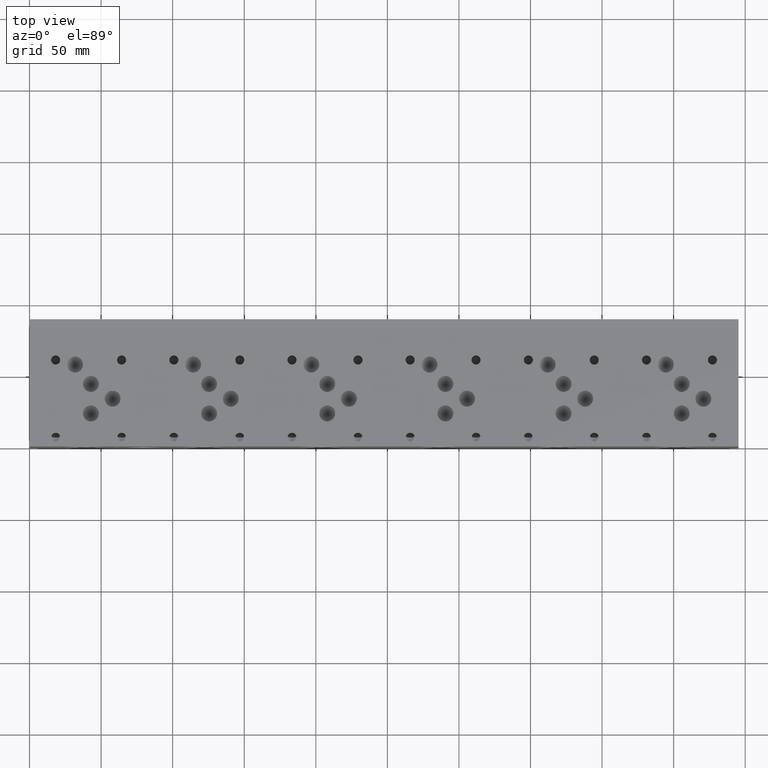
[diagram: clean part render]
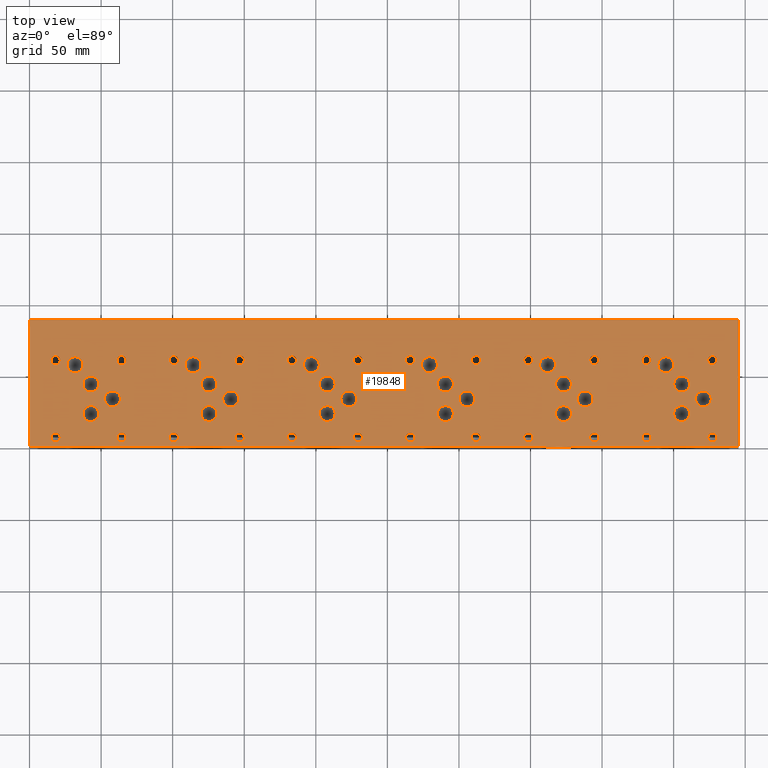
[diagram: same view with one face highlighted and labeled with its STEP entity id]
A machine part, top view. The second image highlights one B-rep face of the part: STEP entity #19848.
In plain terms, the highlighted planar face has unit normal (0, 0, 1).
Its self-contained STEP definition (entity closure, byte-faithful):
#696=CIRCLE('',#20896,3.175);
#697=CIRCLE('',#20897,3.175);
#703=CIRCLE('',#20907,3.175);
#704=CIRCLE('',#20908,3.175);
#710=CIRCLE('',#20918,3.175);
#711=CIRCLE('',#20919,3.175);
#717=CIRCLE('',#20929,3.175);
#718=CIRCLE('',#20930,3.175);
#724=CIRCLE('',#20940,3.175);
#725=CIRCLE('',#20941,3.175);
#731=CIRCLE('',#20951,3.175);
#732=CIRCLE('',#20952,3.175);
#738=CIRCLE('',#20962,3.175);
#739=CIRCLE('',#20963,3.175);
#745=CIRCLE('',#20973,3.175);
#746=CIRCLE('',#20974,3.175);
#752=CIRCLE('',#20984,3.175);
#753=CIRCLE('',#20985,3.175);
#759=CIRCLE('',#20995,3.175);
#760=CIRCLE('',#20996,3.175);
#766=CIRCLE('',#21006,3.175);
#767=CIRCLE('',#21007,3.175);
#773=CIRCLE('',#21017,3.175);
#774=CIRCLE('',#21018,3.175);
#780=CIRCLE('',#21028,3.175);
#781=CIRCLE('',#21029,3.175);
#787=CIRCLE('',#21039,3.175);
#788=CIRCLE('',#21040,3.175);
#794=CIRCLE('',#21050,3.175);
#795=CIRCLE('',#21051,3.175);
#801=CIRCLE('',#21061,3.175);
#802=CIRCLE('',#21062,3.175);
#808=CIRCLE('',#21072,3.175);
#809=CIRCLE('',#21073,3.175);
#815=CIRCLE('',#21083,3.175);
#816=CIRCLE('',#21084,3.175);
#822=CIRCLE('',#21094,3.175);
#823=CIRCLE('',#21095,3.175);
#829=CIRCLE('',#21105,3.175);
#830=CIRCLE('',#21106,3.175);
#833=CIRCLE('',#21112,5.5626);
#834=CIRCLE('',#21113,5.5626);
#837=CIRCLE('',#21118,5.5626);
#838=CIRCLE('',#21119,5.5626);
#841=CIRCLE('',#21124,5.5626);
#842=CIRCLE('',#21125,5.5626);
#845=CIRCLE('',#21130,5.5626);
#846=CIRCLE('',#21131,5.5626);
#849=CIRCLE('',#21136,5.5626);
#850=CIRCLE('',#21137,5.5626);
#853=CIRCLE('',#21142,5.5626);
#854=CIRCLE('',#21143,5.5626);
#857=CIRCLE('',#21148,5.5626);
#858=CIRCLE('',#21149,5.5626);
#861=CIRCLE('',#21154,5.5626);
#862=CIRCLE('',#21155,5.5626);
#865=CIRCLE('',#21160,5.5626);
#866=CIRCLE('',#21161,5.5626);
#869=CIRCLE('',#21166,5.5626);
#870=CIRCLE('',#21167,5.5626);
#873=CIRCLE('',#21172,5.5626);
#874=CIRCLE('',#21173,5.5626);
#877=CIRCLE('',#21178,5.5626);
#878=CIRCLE('',#21179,5.5626);
#881=CIRCLE('',#21184,5.5626);
#882=CIRCLE('',#21185,5.5626);
#885=CIRCLE('',#21190,5.5626);
#886=CIRCLE('',#21191,5.5626);
#889=CIRCLE('',#21196,5.5626);
#890=CIRCLE('',#21197,5.5626);
#893=CIRCLE('',#21202,5.5626);
#894=CIRCLE('',#21203,5.5626);
#897=CIRCLE('',#21208,5.5626);
#898=CIRCLE('',#21209,5.5626);
#901=CIRCLE('',#21214,5.5626);
#902=CIRCLE('',#21215,5.5626);
#905=CIRCLE('',#21220,5.5626);
#906=CIRCLE('',#21221,5.5626);
#909=CIRCLE('',#21226,5.5626);
#910=CIRCLE('',#21227,5.5626);
#913=CIRCLE('',#21232,5.5626);
#914=CIRCLE('',#21233,5.5626);
#917=CIRCLE('',#21238,5.5626);
#918=CIRCLE('',#21239,5.5626);
#921=CIRCLE('',#21244,5.5626);
#922=CIRCLE('',#21245,5.5626);
#925=CIRCLE('',#21250,5.5626);
#926=CIRCLE('',#21251,5.5626);
#932=CIRCLE('',#21260,3.175);
#933=CIRCLE('',#21261,3.175);
#939=CIRCLE('',#21271,3.175);
#940=CIRCLE('',#21272,3.175);
#946=CIRCLE('',#21282,3.175);
#947=CIRCLE('',#21283,3.175);
#953=CIRCLE('',#21293,3.175);
#954=CIRCLE('',#21294,3.175);
#1108=FACE_BOUND('',#4119,.T.);
#1109=FACE_BOUND('',#4120,.T.);
#1110=FACE_BOUND('',#4121,.T.);
#1111=FACE_BOUND('',#4122,.T.);
#1112=FACE_BOUND('',#4123,.T.);
#1113=FACE_BOUND('',#4124,.T.);
#1114=FACE_BOUND('',#4125,.T.);
#1115=FACE_BOUND('',#4126,.T.);
#1116=FACE_BOUND('',#4127,.T.);
#1117=FACE_BOUND('',#4128,.T.);
#1118=FACE_BOUND('',#4129,.T.);
#1119=FACE_BOUND('',#4130,.T.);
#1120=FACE_BOUND('',#4131,.T.);
#1121=FACE_BOUND('',#4132,.T.);
#1122=FACE_BOUND('',#4133,.T.);
#1123=FACE_BOUND('',#4134,.T.);
#1124=FACE_BOUND('',#4135,.T.);
#1125=FACE_BOUND('',#4136,.T.);
#1126=FACE_BOUND('',#4137,.T.);
#1127=FACE_BOUND('',#4138,.T.);
#1128=FACE_BOUND('',#4139,.T.);
#1129=FACE_BOUND('',#4140,.T.);
#1130=FACE_BOUND('',#4141,.T.);
#1131=FACE_BOUND('',#4142,.T.);
#1132=FACE_BOUND('',#4143,.T.);
#1133=FACE_BOUND('',#4144,.T.);
#1134=FACE_BOUND('',#4145,.T.);
#1135=FACE_BOUND('',#4146,.T.);
#1136=FACE_BOUND('',#4147,.T.);
#1137=FACE_BOUND('',#4148,.T.);
#1138=FACE_BOUND('',#4149,.T.);
#1139=FACE_BOUND('',#4150,.T.);
#1140=FACE_BOUND('',#4151,.T.);
#1141=FACE_BOUND('',#4152,.T.);
#1142=FACE_BOUND('',#4153,.T.);
#1143=FACE_BOUND('',#4154,.T.);
#1144=FACE_BOUND('',#4155,.T.);
#1145=FACE_BOUND('',#4156,.T.);
#1146=FACE_BOUND('',#4157,.T.);
#1147=FACE_BOUND('',#4158,.T.);
#1148=FACE_BOUND('',#4159,.T.);
#1149=FACE_BOUND('',#4160,.T.);
#1150=FACE_BOUND('',#4161,.T.);
#1151=FACE_BOUND('',#4162,.T.);
#1152=FACE_BOUND('',#4163,.T.);
#1153=FACE_BOUND('',#4164,.T.);
#1154=FACE_BOUND('',#4165,.T.);
#1155=FACE_BOUND('',#4166,.T.);
#2927=FACE_OUTER_BOUND('',#4118,.T.);
#4118=EDGE_LOOP('',(#17567,#17568,#17569,#17570));
#4119=EDGE_LOOP('',(#17571,#17572));
#4120=EDGE_LOOP('',(#17573,#17574));
#4121=EDGE_LOOP('',(#17575,#17576));
#4122=EDGE_LOOP('',(#17577,#17578));
#4123=EDGE_LOOP('',(#17579,#17580));
#4124=EDGE_LOOP('',(#17581,#17582));
#4125=EDGE_LOOP('',(#17583,#17584));
#4126=EDGE_LOOP('',(#17585,#17586));
#4127=EDGE_LOOP('',(#17587,#17588));
#4128=EDGE_LOOP('',(#17589,#17590));
#4129=EDGE_LOOP('',(#17591,#17592));
#4130=EDGE_LOOP('',(#17593,#17594));
#4131=EDGE_LOOP('',(#17595,#17596));
#4132=EDGE_LOOP('',(#17597,#17598));
#4133=EDGE_LOOP('',(#17599,#17600));
#4134=EDGE_LOOP('',(#17601,#17602));
#4135=EDGE_LOOP('',(#17603,#17604));
#4136=EDGE_LOOP('',(#17605,#17606));
#4137=EDGE_LOOP('',(#17607,#17608));
#4138=EDGE_LOOP('',(#17609,#17610));
#4139=EDGE_LOOP('',(#17611,#17612));
#4140=EDGE_LOOP('',(#17613,#17614));
#4141=EDGE_LOOP('',(#17615,#17616));
#4142=EDGE_LOOP('',(#17617,#17618));
#4143=EDGE_LOOP('',(#17619,#17620));
#4144=EDGE_LOOP('',(#17621,#17622));
#4145=EDGE_LOOP('',(#17623,#17624));
#4146=EDGE_LOOP('',(#17625,#17626));
#4147=EDGE_LOOP('',(#17627,#17628));
#4148=EDGE_LOOP('',(#17629,#17630));
#4149=EDGE_LOOP('',(#17631,#17632));
#4150=EDGE_LOOP('',(#17633,#17634));
#4151=EDGE_LOOP('',(#17635,#17636));
#4152=EDGE_LOOP('',(#17637,#17638));
#4153=EDGE_LOOP('',(#17639,#17640));
#4154=EDGE_LOOP('',(#17641,#17642));
#4155=EDGE_LOOP('',(#17643,#17644));
#4156=EDGE_LOOP('',(#17645,#17646));
#4157=EDGE_LOOP('',(#17647,#17648));
#4158=EDGE_LOOP('',(#17649,#17650));
#4159=EDGE_LOOP('',(#17651,#17652));
#4160=EDGE_LOOP('',(#17653,#17654));
#4161=EDGE_LOOP('',(#17655,#17656));
#4162=EDGE_LOOP('',(#17657,#17658));
#4163=EDGE_LOOP('',(#17659,#17660));
#4164=EDGE_LOOP('',(#17661,#17662));
#4165=EDGE_LOOP('',(#17663,#17664));
#4166=EDGE_LOOP('',(#17665,#17666));
#4226=LINE('',#26071,#5859);
#4286=LINE('',#26346,#5919);
#4595=LINE('',#29080,#6228);
#5800=LINE('',#34733,#7433);
#5859=VECTOR('',#21400,10.);
#5919=VECTOR('',#21514,10.);
#6228=VECTOR('',#21985,10.);
#7433=VECTOR('',#25804,10.);
#7484=VERTEX_POINT('',#26068);
#7485=VERTEX_POINT('',#26070);
#7544=VERTEX_POINT('',#26343);
#7545=VERTEX_POINT('',#26345);
#9061=VERTEX_POINT('',#33905);
#9062=VERTEX_POINT('',#33906);
#9069=VERTEX_POINT('',#33927);
#9070=VERTEX_POINT('',#33928);
#9077=VERTEX_POINT('',#33949);
#9078=VERTEX_POINT('',#33950);
#9085=VERTEX_POINT('',#33971);
#9086=VERTEX_POINT('',#33972);
#9093=VERTEX_POINT('',#33993);
#9094=VERTEX_POINT('',#33994);
#9101=VERTEX_POINT('',#34015);
#9102=VERTEX_POINT('',#34016);
#9109=VERTEX_POINT('',#34037);
#9110=VERTEX_POINT('',#34038);
#9117=VERTEX_POINT('',#34059);
#9118=VERTEX_POINT('',#34060);
#9125=VERTEX_POINT('',#34081);
#9126=VERTEX_POINT('',#34082);
#9133=VERTEX_POINT('',#34103);
#9134=VERTEX_POINT('',#34104);
#9141=VERTEX_POINT('',#34125);
#9142=VERTEX_POINT('',#34126);
#9149=VERTEX_POINT('',#34147);
#9150=VERTEX_POINT('',#34148);
#9157=VERTEX_POINT('',#34169);
#9158=VERTEX_POINT('',#34170);
#9165=VERTEX_POINT('',#34191);
#9166=VERTEX_POINT('',#34192);
#9173=VERTEX_POINT('',#34213);
#9174=VERTEX_POINT('',#34214);
#9181=VERTEX_POINT('',#34235);
#9182=VERTEX_POINT('',#34236);
#9189=VERTEX_POINT('',#34257);
#9190=VERTEX_POINT('',#34258);
#9197=VERTEX_POINT('',#34279);
#9198=VERTEX_POINT('',#34280);
#9205=VERTEX_POINT('',#34301);
#9206=VERTEX_POINT('',#34302);
#9213=VERTEX_POINT('',#34323);
#9214=VERTEX_POINT('',#34324);
#9218=VERTEX_POINT('',#34338);
#9219=VERTEX_POINT('',#34339);
#9223=VERTEX_POINT('',#34351);
#9224=VERTEX_POINT('',#34352);
#9228=VERTEX_POINT('',#34364);
#9229=VERTEX_POINT('',#34365);
#9233=VERTEX_POINT('',#34377);
#9234=VERTEX_POINT('',#34378);
#9238=VERTEX_POINT('',#34390);
#9239=VERTEX_POINT('',#34391);
#9243=VERTEX_POINT('',#34403);
#9244=VERTEX_POINT('',#34404);
#9248=VERTEX_POINT('',#34416);
#9249=VERTEX_POINT('',#34417);
#9253=VERTEX_POINT('',#34429);
#9254=VERTEX_POINT('',#34430);
#9258=VERTEX_POINT('',#34442);
#9259=VERTEX_POINT('',#34443);
#9263=VERTEX_POINT('',#34455);
#9264=VERTEX_POINT('',#34456);
#9268=VERTEX_POINT('',#34468);
#9269=VERTEX_POINT('',#34469);
#9273=VERTEX_POINT('',#34481);
#9274=VERTEX_POINT('',#34482);
#9278=VERTEX_POINT('',#34494);
#9279=VERTEX_POINT('',#34495);
#9283=VERTEX_POINT('',#34507);
#9284=VERTEX_POINT('',#34508);
#9288=VERTEX_POINT('',#34520);
#9289=VERTEX_POINT('',#34521);
#9293=VERTEX_POINT('',#34533);
#9294=VERTEX_POINT('',#34534);
#9298=VERTEX_POINT('',#34546);
#9299=VERTEX_POINT('',#34547);
#9303=VERTEX_POINT('',#34559);
#9304=VERTEX_POINT('',#34560);
#9308=VERTEX_POINT('',#34572);
#9309=VERTEX_POINT('',#34573);
#9313=VERTEX_POINT('',#34585);
#9314=VERTEX_POINT('',#34586);
#9318=VERTEX_POINT('',#34598);
#9319=VERTEX_POINT('',#34599);
#9323=VERTEX_POINT('',#34611);
#9324=VERTEX_POINT('',#34612);
#9328=VERTEX_POINT('',#34624);
#9329=VERTEX_POINT('',#34625);
#9333=VERTEX_POINT('',#34637);
#9334=VERTEX_POINT('',#34638);
#9341=VERTEX_POINT('',#34657);
#9342=VERTEX_POINT('',#34658);
#9349=VERTEX_POINT('',#34679);
#9350=VERTEX_POINT('',#34680);
#9357=VERTEX_POINT('',#34701);
#9358=VERTEX_POINT('',#34702);
#9365=VERTEX_POINT('',#34723);
#9366=VERTEX_POINT('',#34724);
#9441=EDGE_CURVE('',#7485,#7484,#4226,.T.);
#9525=EDGE_CURVE('',#7545,#7544,#4286,.T.);
#10088=EDGE_CURVE('',#7544,#7485,#4595,.T.);
#11755=EDGE_CURVE('',#9061,#9062,#696,.T.);
#11756=EDGE_CURVE('',#9062,#9061,#697,.T.);
#11765=EDGE_CURVE('',#9069,#9070,#703,.T.);
#11766=EDGE_CURVE('',#9070,#9069,#704,.T.);
#11775=EDGE_CURVE('',#9077,#9078,#710,.T.);
#11776=EDGE_CURVE('',#9078,#9077,#711,.T.);
#11785=EDGE_CURVE('',#9085,#9086,#717,.T.);
#11786=EDGE_CURVE('',#9086,#9085,#718,.T.);
#11795=EDGE_CURVE('',#9093,#9094,#724,.T.);
#11796=EDGE_CURVE('',#9094,#9093,#725,.T.);
#11805=EDGE_CURVE('',#9101,#9102,#731,.T.);
#11806=EDGE_CURVE('',#9102,#9101,#732,.T.);
#11815=EDGE_CURVE('',#9109,#9110,#738,.T.);
#11816=EDGE_CURVE('',#9110,#9109,#739,.T.);
#11825=EDGE_CURVE('',#9117,#9118,#745,.T.);
#11826=EDGE_CURVE('',#9118,#9117,#746,.T.);
#11835=EDGE_CURVE('',#9125,#9126,#752,.T.);
#11836=EDGE_CURVE('',#9126,#9125,#753,.T.);
#11845=EDGE_CURVE('',#9133,#9134,#759,.T.);
#11846=EDGE_CURVE('',#9134,#9133,#760,.T.);
#11855=EDGE_CURVE('',#9141,#9142,#766,.T.);
#11856=EDGE_CURVE('',#9142,#9141,#767,.T.);
#11865=EDGE_CURVE('',#9149,#9150,#773,.T.);
#11866=EDGE_CURVE('',#9150,#9149,#774,.T.);
#11875=EDGE_CURVE('',#9157,#9158,#780,.T.);
#11876=EDGE_CURVE('',#9158,#9157,#781,.T.);
#11885=EDGE_CURVE('',#9165,#9166,#787,.T.);
#11886=EDGE_CURVE('',#9166,#9165,#788,.T.);
#11895=EDGE_CURVE('',#9173,#9174,#794,.T.);
#11896=EDGE_CURVE('',#9174,#9173,#795,.T.);
#11905=EDGE_CURVE('',#9181,#9182,#801,.T.);
#11906=EDGE_CURVE('',#9182,#9181,#802,.T.);
#11915=EDGE_CURVE('',#9189,#9190,#808,.T.);
#11916=EDGE_CURVE('',#9190,#9189,#809,.T.);
#11925=EDGE_CURVE('',#9197,#9198,#815,.T.);
#11926=EDGE_CURVE('',#9198,#9197,#816,.T.);
#11935=EDGE_CURVE('',#9205,#9206,#822,.T.);
#11936=EDGE_CURVE('',#9206,#9205,#823,.T.);
#11945=EDGE_CURVE('',#9213,#9214,#829,.T.);
#11946=EDGE_CURVE('',#9214,#9213,#830,.T.);
#11952=EDGE_CURVE('',#9218,#9219,#833,.T.);
#11953=EDGE_CURVE('',#9219,#9218,#834,.T.);
#11958=EDGE_CURVE('',#9223,#9224,#837,.T.);
#11959=EDGE_CURVE('',#9224,#9223,#838,.T.);
#11964=EDGE_CURVE('',#9228,#9229,#841,.T.);
#11965=EDGE_CURVE('',#9229,#9228,#842,.T.);
#11970=EDGE_CURVE('',#9233,#9234,#845,.T.);
#11971=EDGE_CURVE('',#9234,#9233,#846,.T.);
#11976=EDGE_CURVE('',#9238,#9239,#849,.T.);
#11977=EDGE_CURVE('',#9239,#9238,#850,.T.);
#11982=EDGE_CURVE('',#9243,#9244,#853,.T.);
#11983=EDGE_CURVE('',#9244,#9243,#854,.T.);
#11988=EDGE_CURVE('',#9248,#9249,#857,.T.);
#11989=EDGE_CURVE('',#9249,#9248,#858,.T.);
#11994=EDGE_CURVE('',#9253,#9254,#861,.T.);
#11995=EDGE_CURVE('',#9254,#9253,#862,.T.);
#12000=EDGE_CURVE('',#9258,#9259,#865,.T.);
#12001=EDGE_CURVE('',#9259,#9258,#866,.T.);
#12006=EDGE_CURVE('',#9263,#9264,#869,.T.);
#12007=EDGE_CURVE('',#9264,#9263,#870,.T.);
#12012=EDGE_CURVE('',#9268,#9269,#873,.T.);
#12013=EDGE_CURVE('',#9269,#9268,#874,.T.);
#12018=EDGE_CURVE('',#9273,#9274,#877,.T.);
#12019=EDGE_CURVE('',#9274,#9273,#878,.T.);
#12024=EDGE_CURVE('',#9278,#9279,#881,.T.);
#12025=EDGE_CURVE('',#9279,#9278,#882,.T.);
#12030=EDGE_CURVE('',#9283,#9284,#885,.T.);
#12031=EDGE_CURVE('',#9284,#9283,#886,.T.);
#12036=EDGE_CURVE('',#9288,#9289,#889,.T.);
#12037=EDGE_CURVE('',#9289,#9288,#890,.T.);
#12042=EDGE_CURVE('',#9293,#9294,#893,.T.);
#12043=EDGE_CURVE('',#9294,#9293,#894,.T.);
#12048=EDGE_CURVE('',#9298,#9299,#897,.T.);
#12049=EDGE_CURVE('',#9299,#9298,#898,.T.);
#12054=EDGE_CURVE('',#9303,#9304,#901,.T.);
#12055=EDGE_CURVE('',#9304,#9303,#902,.T.);
#12060=EDGE_CURVE('',#9308,#9309,#905,.T.);
#12061=EDGE_CURVE('',#9309,#9308,#906,.T.);
#12066=EDGE_CURVE('',#9313,#9314,#909,.T.);
#12067=EDGE_CURVE('',#9314,#9313,#910,.T.);
#12072=EDGE_CURVE('',#9318,#9319,#913,.T.);
#12073=EDGE_CURVE('',#9319,#9318,#914,.T.);
#12078=EDGE_CURVE('',#9323,#9324,#917,.T.);
#12079=EDGE_CURVE('',#9324,#9323,#918,.T.);
#12084=EDGE_CURVE('',#9328,#9329,#921,.T.);
#12085=EDGE_CURVE('',#9329,#9328,#922,.T.);
#12090=EDGE_CURVE('',#9333,#9334,#925,.T.);
#12091=EDGE_CURVE('',#9334,#9333,#926,.T.);
#12099=EDGE_CURVE('',#9341,#9342,#932,.T.);
#12100=EDGE_CURVE('',#9342,#9341,#933,.T.);
#12109=EDGE_CURVE('',#9349,#9350,#939,.T.);
#12110=EDGE_CURVE('',#9350,#9349,#940,.T.);
#12119=EDGE_CURVE('',#9357,#9358,#946,.T.);
#12120=EDGE_CURVE('',#9358,#9357,#947,.T.);
#12129=EDGE_CURVE('',#9365,#9366,#953,.T.);
#12130=EDGE_CURVE('',#9366,#9365,#954,.T.);
#12134=EDGE_CURVE('',#7484,#7545,#5800,.T.);
#17567=ORIENTED_EDGE('',*,*,#10088,.T.);
#17568=ORIENTED_EDGE('',*,*,#9441,.T.);
#17569=ORIENTED_EDGE('',*,*,#12134,.T.);
#17570=ORIENTED_EDGE('',*,*,#9525,.T.);
#17571=ORIENTED_EDGE('',*,*,#11755,.T.);
#17572=ORIENTED_EDGE('',*,*,#11756,.T.);
#17573=ORIENTED_EDGE('',*,*,#11765,.T.);
#17574=ORIENTED_EDGE('',*,*,#11766,.T.);
#17575=ORIENTED_EDGE('',*,*,#11775,.T.);
#17576=ORIENTED_EDGE('',*,*,#11776,.T.);
#17577=ORIENTED_EDGE('',*,*,#11785,.T.);
#17578=ORIENTED_EDGE('',*,*,#11786,.T.);
#17579=ORIENTED_EDGE('',*,*,#11795,.T.);
#17580=ORIENTED_EDGE('',*,*,#11796,.T.);
#17581=ORIENTED_EDGE('',*,*,#11805,.T.);
#17582=ORIENTED_EDGE('',*,*,#11806,.T.);
#17583=ORIENTED_EDGE('',*,*,#11815,.T.);
#17584=ORIENTED_EDGE('',*,*,#11816,.T.);
#17585=ORIENTED_EDGE('',*,*,#11825,.T.);
#17586=ORIENTED_EDGE('',*,*,#11826,.T.);
#17587=ORIENTED_EDGE('',*,*,#11835,.T.);
#17588=ORIENTED_EDGE('',*,*,#11836,.T.);
#17589=ORIENTED_EDGE('',*,*,#11845,.T.);
#17590=ORIENTED_EDGE('',*,*,#11846,.T.);
#17591=ORIENTED_EDGE('',*,*,#11855,.T.);
#17592=ORIENTED_EDGE('',*,*,#11856,.T.);
#17593=ORIENTED_EDGE('',*,*,#11865,.T.);
#17594=ORIENTED_EDGE('',*,*,#11866,.T.);
#17595=ORIENTED_EDGE('',*,*,#11875,.T.);
#17596=ORIENTED_EDGE('',*,*,#11876,.T.);
#17597=ORIENTED_EDGE('',*,*,#11885,.T.);
#17598=ORIENTED_EDGE('',*,*,#11886,.T.);
#17599=ORIENTED_EDGE('',*,*,#11895,.T.);
#17600=ORIENTED_EDGE('',*,*,#11896,.T.);
#17601=ORIENTED_EDGE('',*,*,#11905,.T.);
#17602=ORIENTED_EDGE('',*,*,#11906,.T.);
#17603=ORIENTED_EDGE('',*,*,#11915,.T.);
#17604=ORIENTED_EDGE('',*,*,#11916,.T.);
#17605=ORIENTED_EDGE('',*,*,#11925,.T.);
#17606=ORIENTED_EDGE('',*,*,#11926,.T.);
#17607=ORIENTED_EDGE('',*,*,#11935,.T.);
#17608=ORIENTED_EDGE('',*,*,#11936,.T.);
#17609=ORIENTED_EDGE('',*,*,#11945,.T.);
#17610=ORIENTED_EDGE('',*,*,#11946,.T.);
#17611=ORIENTED_EDGE('',*,*,#11952,.T.);
#17612=ORIENTED_EDGE('',*,*,#11953,.T.);
#17613=ORIENTED_EDGE('',*,*,#11958,.T.);
#17614=ORIENTED_EDGE('',*,*,#11959,.T.);
#17615=ORIENTED_EDGE('',*,*,#11964,.T.);
#17616=ORIENTED_EDGE('',*,*,#11965,.T.);
#17617=ORIENTED_EDGE('',*,*,#11970,.T.);
#17618=ORIENTED_EDGE('',*,*,#11971,.T.);
#17619=ORIENTED_EDGE('',*,*,#11976,.T.);
#17620=ORIENTED_EDGE('',*,*,#11977,.T.);
#17621=ORIENTED_EDGE('',*,*,#11982,.T.);
#17622=ORIENTED_EDGE('',*,*,#11983,.T.);
#17623=ORIENTED_EDGE('',*,*,#11988,.T.);
#17624=ORIENTED_EDGE('',*,*,#11989,.T.);
#17625=ORIENTED_EDGE('',*,*,#11994,.T.);
#17626=ORIENTED_EDGE('',*,*,#11995,.T.);
#17627=ORIENTED_EDGE('',*,*,#12000,.T.);
#17628=ORIENTED_EDGE('',*,*,#12001,.T.);
#17629=ORIENTED_EDGE('',*,*,#12006,.T.);
#17630=ORIENTED_EDGE('',*,*,#12007,.T.);
#17631=ORIENTED_EDGE('',*,*,#12012,.T.);
#17632=ORIENTED_EDGE('',*,*,#12013,.T.);
#17633=ORIENTED_EDGE('',*,*,#12018,.T.);
#17634=ORIENTED_EDGE('',*,*,#12019,.T.);
#17635=ORIENTED_EDGE('',*,*,#12024,.T.);
#17636=ORIENTED_EDGE('',*,*,#12025,.T.);
#17637=ORIENTED_EDGE('',*,*,#12030,.T.);
#17638=ORIENTED_EDGE('',*,*,#12031,.T.);
#17639=ORIENTED_EDGE('',*,*,#12036,.T.);
#17640=ORIENTED_EDGE('',*,*,#12037,.T.);
#17641=ORIENTED_EDGE('',*,*,#12042,.T.);
#17642=ORIENTED_EDGE('',*,*,#12043,.T.);
#17643=ORIENTED_EDGE('',*,*,#12048,.T.);
#17644=ORIENTED_EDGE('',*,*,#12049,.T.);
#17645=ORIENTED_EDGE('',*,*,#12054,.T.);
#17646=ORIENTED_EDGE('',*,*,#12055,.T.);
#17647=ORIENTED_EDGE('',*,*,#12060,.T.);
#17648=ORIENTED_EDGE('',*,*,#12061,.T.);
#17649=ORIENTED_EDGE('',*,*,#12066,.T.);
#17650=ORIENTED_EDGE('',*,*,#12067,.T.);
#17651=ORIENTED_EDGE('',*,*,#12072,.T.);
#17652=ORIENTED_EDGE('',*,*,#12073,.T.);
#17653=ORIENTED_EDGE('',*,*,#12078,.T.);
#17654=ORIENTED_EDGE('',*,*,#12079,.T.);
#17655=ORIENTED_EDGE('',*,*,#12084,.T.);
#17656=ORIENTED_EDGE('',*,*,#12085,.T.);
#17657=ORIENTED_EDGE('',*,*,#12090,.T.);
#17658=ORIENTED_EDGE('',*,*,#12091,.T.);
#17659=ORIENTED_EDGE('',*,*,#12099,.T.);
#17660=ORIENTED_EDGE('',*,*,#12100,.T.);
#17661=ORIENTED_EDGE('',*,*,#12109,.T.);
#17662=ORIENTED_EDGE('',*,*,#12110,.T.);
#17663=ORIENTED_EDGE('',*,*,#12119,.T.);
#17664=ORIENTED_EDGE('',*,*,#12120,.T.);
#17665=ORIENTED_EDGE('',*,*,#12129,.T.);
#17666=ORIENTED_EDGE('',*,*,#12130,.T.);
#18166=PLANE('',#21300);
#19848=ADVANCED_FACE('',(#2927,#1108,#1109,#1110,#1111,#1112,#1113,#1114,
#1115,#1116,#1117,#1118,#1119,#1120,#1121,#1122,#1123,#1124,#1125,#1126,
#1127,#1128,#1129,#1130,#1131,#1132,#1133,#1134,#1135,#1136,#1137,#1138,
#1139,#1140,#1141,#1142,#1143,#1144,#1145,#1146,#1147,#1148,#1149,#1150,
#1151,#1152,#1153,#1154,#1155),#18166,.T.);
#20896=AXIS2_PLACEMENT_3D('',#33907,#24880,#24881);
#20897=AXIS2_PLACEMENT_3D('',#33908,#24882,#24883);
#20907=AXIS2_PLACEMENT_3D('',#33929,#24905,#24906);
#20908=AXIS2_PLACEMENT_3D('',#33930,#24907,#24908);
#20918=AXIS2_PLACEMENT_3D('',#33951,#24930,#24931);
#20919=AXIS2_PLACEMENT_3D('',#33952,#24932,#24933);
#20929=AXIS2_PLACEMENT_3D('',#33973,#24955,#24956);
#20930=AXIS2_PLACEMENT_3D('',#33974,#24957,#24958);
#20940=AXIS2_PLACEMENT_3D('',#33995,#24980,#24981);
#20941=AXIS2_PLACEMENT_3D('',#33996,#24982,#24983);
#20951=AXIS2_PLACEMENT_3D('',#34017,#25005,#25006);
#20952=AXIS2_PLACEMENT_3D('',#34018,#25007,#25008);
#20962=AXIS2_PLACEMENT_3D('',#34039,#25030,#25031);
#20963=AXIS2_PLACEMENT_3D('',#34040,#25032,#25033);
#20973=AXIS2_PLACEMENT_3D('',#34061,#25055,#25056);
#20974=AXIS2_PLACEMENT_3D('',#34062,#25057,#25058);
#20984=AXIS2_PLACEMENT_3D('',#34083,#25080,#25081);
#20985=AXIS2_PLACEMENT_3D('',#34084,#25082,#25083);
#20995=AXIS2_PLACEMENT_3D('',#34105,#25105,#25106);
#20996=AXIS2_PLACEMENT_3D('',#34106,#25107,#25108);
#21006=AXIS2_PLACEMENT_3D('',#34127,#25130,#25131);
#21007=AXIS2_PLACEMENT_3D('',#34128,#25132,#25133);
#21017=AXIS2_PLACEMENT_3D('',#34149,#25155,#25156);
#21018=AXIS2_PLACEMENT_3D('',#34150,#25157,#25158);
#21028=AXIS2_PLACEMENT_3D('',#34171,#25180,#25181);
#21029=AXIS2_PLACEMENT_3D('',#34172,#25182,#25183);
#21039=AXIS2_PLACEMENT_3D('',#34193,#25205,#25206);
#21040=AXIS2_PLACEMENT_3D('',#34194,#25207,#25208);
#21050=AXIS2_PLACEMENT_3D('',#34215,#25230,#25231);
#21051=AXIS2_PLACEMENT_3D('',#34216,#25232,#25233);
#21061=AXIS2_PLACEMENT_3D('',#34237,#25255,#25256);
#21062=AXIS2_PLACEMENT_3D('',#34238,#25257,#25258);
#21072=AXIS2_PLACEMENT_3D('',#34259,#25280,#25281);
#21073=AXIS2_PLACEMENT_3D('',#34260,#25282,#25283);
#21083=AXIS2_PLACEMENT_3D('',#34281,#25305,#25306);
#21084=AXIS2_PLACEMENT_3D('',#34282,#25307,#25308);
#21094=AXIS2_PLACEMENT_3D('',#34303,#25330,#25331);
#21095=AXIS2_PLACEMENT_3D('',#34304,#25332,#25333);
#21105=AXIS2_PLACEMENT_3D('',#34325,#25355,#25356);
#21106=AXIS2_PLACEMENT_3D('',#34326,#25357,#25358);
#21112=AXIS2_PLACEMENT_3D('',#34340,#25372,#25373);
#21113=AXIS2_PLACEMENT_3D('',#34341,#25374,#25375);
#21118=AXIS2_PLACEMENT_3D('',#34353,#25386,#25387);
#21119=AXIS2_PLACEMENT_3D('',#34354,#25388,#25389);
#21124=AXIS2_PLACEMENT_3D('',#34366,#25400,#25401);
#21125=AXIS2_PLACEMENT_3D('',#34367,#25402,#25403);
#21130=AXIS2_PLACEMENT_3D('',#34379,#25414,#25415);
#21131=AXIS2_PLACEMENT_3D('',#34380,#25416,#25417);
#21136=AXIS2_PLACEMENT_3D('',#34392,#25428,#25429);
#21137=AXIS2_PLACEMENT_3D('',#34393,#25430,#25431);
#21142=AXIS2_PLACEMENT_3D('',#34405,#25442,#25443);
#21143=AXIS2_PLACEMENT_3D('',#34406,#25444,#25445);
#21148=AXIS2_PLACEMENT_3D('',#34418,#25456,#25457);
#21149=AXIS2_PLACEMENT_3D('',#34419,#25458,#25459);
#21154=AXIS2_PLACEMENT_3D('',#34431,#25470,#25471);
#21155=AXIS2_PLACEMENT_3D('',#34432,#25472,#25473);
#21160=AXIS2_PLACEMENT_3D('',#34444,#25484,#25485);
#21161=AXIS2_PLACEMENT_3D('',#34445,#25486,#25487);
#21166=AXIS2_PLACEMENT_3D('',#34457,#25498,#25499);
#21167=AXIS2_PLACEMENT_3D('',#34458,#25500,#25501);
#21172=AXIS2_PLACEMENT_3D('',#34470,#25512,#25513);
#21173=AXIS2_PLACEMENT_3D('',#34471,#25514,#25515);
#21178=AXIS2_PLACEMENT_3D('',#34483,#25526,#25527);
#21179=AXIS2_PLACEMENT_3D('',#34484,#25528,#25529);
#21184=AXIS2_PLACEMENT_3D('',#34496,#25540,#25541);
#21185=AXIS2_PLACEMENT_3D('',#34497,#25542,#25543);
#21190=AXIS2_PLACEMENT_3D('',#34509,#25554,#25555);
#21191=AXIS2_PLACEMENT_3D('',#34510,#25556,#25557);
#21196=AXIS2_PLACEMENT_3D('',#34522,#25568,#25569);
#21197=AXIS2_PLACEMENT_3D('',#34523,#25570,#25571);
#21202=AXIS2_PLACEMENT_3D('',#34535,#25582,#25583);
#21203=AXIS2_PLACEMENT_3D('',#34536,#25584,#25585);
#21208=AXIS2_PLACEMENT_3D('',#34548,#25596,#25597);
#21209=AXIS2_PLACEMENT_3D('',#34549,#25598,#25599);
#21214=AXIS2_PLACEMENT_3D('',#34561,#25610,#25611);
#21215=AXIS2_PLACEMENT_3D('',#34562,#25612,#25613);
#21220=AXIS2_PLACEMENT_3D('',#34574,#25624,#25625);
#21221=AXIS2_PLACEMENT_3D('',#34575,#25626,#25627);
#21226=AXIS2_PLACEMENT_3D('',#34587,#25638,#25639);
#21227=AXIS2_PLACEMENT_3D('',#34588,#25640,#25641);
#21232=AXIS2_PLACEMENT_3D('',#34600,#25652,#25653);
#21233=AXIS2_PLACEMENT_3D('',#34601,#25654,#25655);
#21238=AXIS2_PLACEMENT_3D('',#34613,#25666,#25667);
#21239=AXIS2_PLACEMENT_3D('',#34614,#25668,#25669);
#21244=AXIS2_PLACEMENT_3D('',#34626,#25680,#25681);
#21245=AXIS2_PLACEMENT_3D('',#34627,#25682,#25683);
#21250=AXIS2_PLACEMENT_3D('',#34639,#25694,#25695);
#21251=AXIS2_PLACEMENT_3D('',#34640,#25696,#25697);
#21260=AXIS2_PLACEMENT_3D('',#34659,#25716,#25717);
#21261=AXIS2_PLACEMENT_3D('',#34660,#25718,#25719);
#21271=AXIS2_PLACEMENT_3D('',#34681,#25741,#25742);
#21272=AXIS2_PLACEMENT_3D('',#34682,#25743,#25744);
#21282=AXIS2_PLACEMENT_3D('',#34703,#25766,#25767);
#21283=AXIS2_PLACEMENT_3D('',#34704,#25768,#25769);
#21293=AXIS2_PLACEMENT_3D('',#34725,#25791,#25792);
#21294=AXIS2_PLACEMENT_3D('',#34726,#25793,#25794);
#21300=AXIS2_PLACEMENT_3D('',#34736,#25809,#25810);
#21400=DIRECTION('',(0.,1.,0.));
#21514=DIRECTION('',(0.,-1.,0.));
#21985=DIRECTION('',(1.,0.,0.));
#24880=DIRECTION('center_axis',(0.,0.,-1.));
#24881=DIRECTION('ref_axis',(1.,0.,0.));
#24882=DIRECTION('center_axis',(0.,0.,-1.));
#24883=DIRECTION('ref_axis',(1.,0.,0.));
#24905=DIRECTION('center_axis',(0.,0.,-1.));
#24906=DIRECTION('ref_axis',(1.,0.,0.));
#24907=DIRECTION('center_axis',(0.,0.,-1.));
#24908=DIRECTION('ref_axis',(1.,0.,0.));
#24930=DIRECTION('center_axis',(0.,0.,-1.));
#24931=DIRECTION('ref_axis',(1.,0.,0.));
#24932=DIRECTION('center_axis',(0.,0.,-1.));
#24933=DIRECTION('ref_axis',(1.,0.,0.));
#24955=DIRECTION('center_axis',(0.,0.,-1.));
#24956=DIRECTION('ref_axis',(1.,0.,0.));
#24957=DIRECTION('center_axis',(0.,0.,-1.));
#24958=DIRECTION('ref_axis',(1.,0.,0.));
#24980=DIRECTION('center_axis',(0.,0.,-1.));
#24981=DIRECTION('ref_axis',(1.,0.,0.));
#24982=DIRECTION('center_axis',(0.,0.,-1.));
#24983=DIRECTION('ref_axis',(1.,0.,0.));
#25005=DIRECTION('center_axis',(0.,0.,-1.));
#25006=DIRECTION('ref_axis',(1.,0.,0.));
#25007=DIRECTION('center_axis',(0.,0.,-1.));
#25008=DIRECTION('ref_axis',(1.,0.,0.));
#25030=DIRECTION('center_axis',(0.,0.,-1.));
#25031=DIRECTION('ref_axis',(1.,0.,0.));
#25032=DIRECTION('center_axis',(0.,0.,-1.));
#25033=DIRECTION('ref_axis',(1.,0.,0.));
#25055=DIRECTION('center_axis',(0.,0.,-1.));
#25056=DIRECTION('ref_axis',(1.,0.,0.));
#25057=DIRECTION('center_axis',(0.,0.,-1.));
#25058=DIRECTION('ref_axis',(1.,0.,0.));
#25080=DIRECTION('center_axis',(0.,0.,-1.));
#25081=DIRECTION('ref_axis',(1.,0.,0.));
#25082=DIRECTION('center_axis',(0.,0.,-1.));
#25083=DIRECTION('ref_axis',(1.,0.,0.));
#25105=DIRECTION('center_axis',(0.,0.,-1.));
#25106=DIRECTION('ref_axis',(1.,0.,0.));
#25107=DIRECTION('center_axis',(0.,0.,-1.));
#25108=DIRECTION('ref_axis',(1.,0.,0.));
#25130=DIRECTION('center_axis',(0.,0.,-1.));
#25131=DIRECTION('ref_axis',(1.,0.,0.));
#25132=DIRECTION('center_axis',(0.,0.,-1.));
#25133=DIRECTION('ref_axis',(1.,0.,0.));
#25155=DIRECTION('center_axis',(0.,0.,-1.));
#25156=DIRECTION('ref_axis',(1.,0.,0.));
#25157=DIRECTION('center_axis',(0.,0.,-1.));
#25158=DIRECTION('ref_axis',(1.,0.,0.));
#25180=DIRECTION('center_axis',(0.,0.,-1.));
#25181=DIRECTION('ref_axis',(1.,0.,0.));
#25182=DIRECTION('center_axis',(0.,0.,-1.));
#25183=DIRECTION('ref_axis',(1.,0.,0.));
#25205=DIRECTION('center_axis',(0.,0.,-1.));
#25206=DIRECTION('ref_axis',(1.,0.,0.));
#25207=DIRECTION('center_axis',(0.,0.,-1.));
#25208=DIRECTION('ref_axis',(1.,0.,0.));
#25230=DIRECTION('center_axis',(0.,0.,-1.));
#25231=DIRECTION('ref_axis',(1.,0.,0.));
#25232=DIRECTION('center_axis',(0.,0.,-1.));
#25233=DIRECTION('ref_axis',(1.,0.,0.));
#25255=DIRECTION('center_axis',(0.,0.,-1.));
#25256=DIRECTION('ref_axis',(1.,0.,0.));
#25257=DIRECTION('center_axis',(0.,0.,-1.));
#25258=DIRECTION('ref_axis',(1.,0.,0.));
#25280=DIRECTION('center_axis',(0.,0.,-1.));
#25281=DIRECTION('ref_axis',(1.,0.,0.));
#25282=DIRECTION('center_axis',(0.,0.,-1.));
#25283=DIRECTION('ref_axis',(1.,0.,0.));
#25305=DIRECTION('center_axis',(0.,0.,-1.));
#25306=DIRECTION('ref_axis',(1.,0.,0.));
#25307=DIRECTION('center_axis',(0.,0.,-1.));
#25308=DIRECTION('ref_axis',(1.,0.,0.));
#25330=DIRECTION('center_axis',(0.,0.,-1.));
#25331=DIRECTION('ref_axis',(1.,0.,0.));
#25332=DIRECTION('center_axis',(0.,0.,-1.));
#25333=DIRECTION('ref_axis',(1.,0.,0.));
#25355=DIRECTION('center_axis',(0.,0.,-1.));
#25356=DIRECTION('ref_axis',(1.,0.,0.));
#25357=DIRECTION('center_axis',(0.,0.,-1.));
#25358=DIRECTION('ref_axis',(1.,0.,0.));
#25372=DIRECTION('center_axis',(0.,0.,-1.));
#25373=DIRECTION('ref_axis',(1.,0.,0.));
#25374=DIRECTION('center_axis',(0.,0.,-1.));
#25375=DIRECTION('ref_axis',(1.,0.,0.));
#25386=DIRECTION('center_axis',(0.,0.,-1.));
#25387=DIRECTION('ref_axis',(1.,0.,0.));
#25388=DIRECTION('center_axis',(0.,0.,-1.));
#25389=DIRECTION('ref_axis',(1.,0.,0.));
#25400=DIRECTION('center_axis',(0.,0.,-1.));
#25401=DIRECTION('ref_axis',(1.,0.,0.));
#25402=DIRECTION('center_axis',(0.,0.,-1.));
#25403=DIRECTION('ref_axis',(1.,0.,0.));
#25414=DIRECTION('center_axis',(0.,0.,-1.));
#25415=DIRECTION('ref_axis',(1.,0.,0.));
#25416=DIRECTION('center_axis',(0.,0.,-1.));
#25417=DIRECTION('ref_axis',(1.,0.,0.));
#25428=DIRECTION('center_axis',(0.,0.,-1.));
#25429=DIRECTION('ref_axis',(1.,0.,0.));
#25430=DIRECTION('center_axis',(0.,0.,-1.));
#25431=DIRECTION('ref_axis',(1.,0.,0.));
#25442=DIRECTION('center_axis',(0.,0.,-1.));
#25443=DIRECTION('ref_axis',(1.,0.,0.));
#25444=DIRECTION('center_axis',(0.,0.,-1.));
#25445=DIRECTION('ref_axis',(1.,0.,0.));
#25456=DIRECTION('center_axis',(0.,0.,-1.));
#25457=DIRECTION('ref_axis',(1.,0.,0.));
#25458=DIRECTION('center_axis',(0.,0.,-1.));
#25459=DIRECTION('ref_axis',(1.,0.,0.));
#25470=DIRECTION('center_axis',(0.,0.,-1.));
#25471=DIRECTION('ref_axis',(1.,0.,0.));
#25472=DIRECTION('center_axis',(0.,0.,-1.));
#25473=DIRECTION('ref_axis',(1.,0.,0.));
#25484=DIRECTION('center_axis',(0.,0.,-1.));
#25485=DIRECTION('ref_axis',(1.,0.,0.));
#25486=DIRECTION('center_axis',(0.,0.,-1.));
#25487=DIRECTION('ref_axis',(1.,0.,0.));
#25498=DIRECTION('center_axis',(0.,0.,-1.));
#25499=DIRECTION('ref_axis',(1.,0.,0.));
#25500=DIRECTION('center_axis',(0.,0.,-1.));
#25501=DIRECTION('ref_axis',(1.,0.,0.));
#25512=DIRECTION('center_axis',(0.,0.,-1.));
#25513=DIRECTION('ref_axis',(1.,0.,0.));
#25514=DIRECTION('center_axis',(0.,0.,-1.));
#25515=DIRECTION('ref_axis',(1.,0.,0.));
#25526=DIRECTION('center_axis',(0.,0.,-1.));
#25527=DIRECTION('ref_axis',(1.,0.,0.));
#25528=DIRECTION('center_axis',(0.,0.,-1.));
#25529=DIRECTION('ref_axis',(1.,0.,0.));
#25540=DIRECTION('center_axis',(0.,0.,-1.));
#25541=DIRECTION('ref_axis',(1.,0.,0.));
#25542=DIRECTION('center_axis',(0.,0.,-1.));
#25543=DIRECTION('ref_axis',(1.,0.,0.));
#25554=DIRECTION('center_axis',(0.,0.,-1.));
#25555=DIRECTION('ref_axis',(1.,0.,0.));
#25556=DIRECTION('center_axis',(0.,0.,-1.));
#25557=DIRECTION('ref_axis',(1.,0.,0.));
#25568=DIRECTION('center_axis',(0.,0.,-1.));
#25569=DIRECTION('ref_axis',(1.,0.,0.));
#25570=DIRECTION('center_axis',(0.,0.,-1.));
#25571=DIRECTION('ref_axis',(1.,0.,0.));
#25582=DIRECTION('center_axis',(0.,0.,-1.));
#25583=DIRECTION('ref_axis',(1.,0.,0.));
#25584=DIRECTION('center_axis',(0.,0.,-1.));
#25585=DIRECTION('ref_axis',(1.,0.,0.));
#25596=DIRECTION('center_axis',(0.,0.,-1.));
#25597=DIRECTION('ref_axis',(1.,0.,0.));
#25598=DIRECTION('center_axis',(0.,0.,-1.));
#25599=DIRECTION('ref_axis',(1.,0.,0.));
#25610=DIRECTION('center_axis',(0.,0.,-1.));
#25611=DIRECTION('ref_axis',(1.,0.,0.));
#25612=DIRECTION('center_axis',(0.,0.,-1.));
#25613=DIRECTION('ref_axis',(1.,0.,0.));
#25624=DIRECTION('center_axis',(0.,0.,-1.));
#25625=DIRECTION('ref_axis',(1.,0.,0.));
#25626=DIRECTION('center_axis',(0.,0.,-1.));
#25627=DIRECTION('ref_axis',(1.,0.,0.));
#25638=DIRECTION('center_axis',(0.,0.,-1.));
#25639=DIRECTION('ref_axis',(1.,0.,0.));
#25640=DIRECTION('center_axis',(0.,0.,-1.));
#25641=DIRECTION('ref_axis',(1.,0.,0.));
#25652=DIRECTION('center_axis',(0.,0.,-1.));
#25653=DIRECTION('ref_axis',(1.,0.,0.));
#25654=DIRECTION('center_axis',(0.,0.,-1.));
#25655=DIRECTION('ref_axis',(1.,0.,0.));
#25666=DIRECTION('center_axis',(0.,0.,-1.));
#25667=DIRECTION('ref_axis',(1.,0.,0.));
#25668=DIRECTION('center_axis',(0.,0.,-1.));
#25669=DIRECTION('ref_axis',(1.,0.,0.));
#25680=DIRECTION('center_axis',(0.,0.,-1.));
#25681=DIRECTION('ref_axis',(1.,0.,0.));
#25682=DIRECTION('center_axis',(0.,0.,-1.));
#25683=DIRECTION('ref_axis',(1.,0.,0.));
#25694=DIRECTION('center_axis',(0.,0.,-1.));
#25695=DIRECTION('ref_axis',(1.,0.,0.));
#25696=DIRECTION('center_axis',(0.,0.,-1.));
#25697=DIRECTION('ref_axis',(1.,0.,0.));
#25716=DIRECTION('center_axis',(0.,0.,-1.));
#25717=DIRECTION('ref_axis',(1.,0.,0.));
#25718=DIRECTION('center_axis',(0.,0.,-1.));
#25719=DIRECTION('ref_axis',(1.,0.,0.));
#25741=DIRECTION('center_axis',(0.,0.,-1.));
#25742=DIRECTION('ref_axis',(1.,0.,0.));
#25743=DIRECTION('center_axis',(0.,0.,-1.));
#25744=DIRECTION('ref_axis',(1.,0.,0.));
#25766=DIRECTION('center_axis',(0.,0.,-1.));
#25767=DIRECTION('ref_axis',(1.,0.,0.));
#25768=DIRECTION('center_axis',(0.,0.,-1.));
#25769=DIRECTION('ref_axis',(1.,0.,0.));
#25791=DIRECTION('center_axis',(0.,0.,-1.));
#25792=DIRECTION('ref_axis',(1.,0.,0.));
#25793=DIRECTION('center_axis',(0.,0.,-1.));
#25794=DIRECTION('ref_axis',(1.,0.,0.));
#25804=DIRECTION('',(-1.,0.,0.));
#25809=DIRECTION('center_axis',(0.,0.,1.));
#25810=DIRECTION('ref_axis',(1.,0.,0.));
#26068=CARTESIAN_POINT('',(495.3,88.9,88.9));
#26070=CARTESIAN_POINT('',(495.3,0.,88.9));
#26071=CARTESIAN_POINT('',(495.3,0.,88.9));
#26343=CARTESIAN_POINT('',(0.,0.,88.9));
#26345=CARTESIAN_POINT('',(0.,88.9,88.9));
#26346=CARTESIAN_POINT('',(0.,88.9,88.9));
#29080=CARTESIAN_POINT('',(0.,0.,88.9));
#33905=CARTESIAN_POINT('',(480.2124,6.35,88.9));
#33906=CARTESIAN_POINT('',(473.8624,6.35,88.9));
#33907=CARTESIAN_POINT('Origin',(477.0374,6.35,88.9));
#33908=CARTESIAN_POINT('Origin',(477.0374,6.35,88.9));
#33927=CARTESIAN_POINT('',(434.1622,60.325,88.9));
#33928=CARTESIAN_POINT('',(427.8122,60.325,88.9));
#33929=CARTESIAN_POINT('Origin',(430.9872,60.325,88.9));
#33930=CARTESIAN_POINT('Origin',(430.9872,60.325,88.9));
#33949=CARTESIAN_POINT('',(397.6624,6.35,88.9));
#33950=CARTESIAN_POINT('',(391.3124,6.35,88.9));
#33951=CARTESIAN_POINT('Origin',(394.4874,6.35,88.9));
#33952=CARTESIAN_POINT('Origin',(394.4874,6.35,88.9));
#33971=CARTESIAN_POINT('',(351.6122,60.325,88.9));
#33972=CARTESIAN_POINT('',(345.2622,60.325,88.9));
#33973=CARTESIAN_POINT('Origin',(348.4372,60.325,88.9));
#33974=CARTESIAN_POINT('Origin',(348.4372,60.325,88.9));
#33993=CARTESIAN_POINT('',(315.1124,6.35,88.9));
#33994=CARTESIAN_POINT('',(308.7624,6.35,88.9));
#33995=CARTESIAN_POINT('Origin',(311.9374,6.35,88.9));
#33996=CARTESIAN_POINT('Origin',(311.9374,6.35,88.9));
#34015=CARTESIAN_POINT('',(269.0622,60.325,88.9));
#34016=CARTESIAN_POINT('',(262.7122,60.325,88.9));
#34017=CARTESIAN_POINT('Origin',(265.8872,60.325,88.9));
#34018=CARTESIAN_POINT('Origin',(265.8872,60.325,88.9));
#34037=CARTESIAN_POINT('',(232.5624,6.35,88.9));
#34038=CARTESIAN_POINT('',(226.2124,6.35,88.9));
#34039=CARTESIAN_POINT('Origin',(229.3874,6.35,88.9));
#34040=CARTESIAN_POINT('Origin',(229.3874,6.35,88.9));
#34059=CARTESIAN_POINT('',(186.5122,60.325,88.9));
#34060=CARTESIAN_POINT('',(180.1622,60.325,88.9));
#34061=CARTESIAN_POINT('Origin',(183.3372,60.325,88.9));
#34062=CARTESIAN_POINT('Origin',(183.3372,60.325,88.9));
#34081=CARTESIAN_POINT('',(150.0124,6.35,88.9));
#34082=CARTESIAN_POINT('',(143.6624,6.35,88.9));
#34083=CARTESIAN_POINT('Origin',(146.8374,6.35,88.9));
#34084=CARTESIAN_POINT('Origin',(146.8374,6.35,88.9));
#34103=CARTESIAN_POINT('',(103.9622,60.325,88.9));
#34104=CARTESIAN_POINT('',(97.6122,60.325,88.9));
#34105=CARTESIAN_POINT('Origin',(100.7872,60.325,88.9));
#34106=CARTESIAN_POINT('Origin',(100.7872,60.325,88.9));
#34125=CARTESIAN_POINT('',(150.0124,60.325,88.9));
#34126=CARTESIAN_POINT('',(143.6624,60.325,88.9));
#34127=CARTESIAN_POINT('Origin',(146.8374,60.325,88.9));
#34128=CARTESIAN_POINT('Origin',(146.8374,60.325,88.9));
#34147=CARTESIAN_POINT('',(103.9622,6.35,88.9));
#34148=CARTESIAN_POINT('',(97.6122,6.35,88.9));
#34149=CARTESIAN_POINT('Origin',(100.7872,6.35,88.9));
#34150=CARTESIAN_POINT('Origin',(100.7872,6.35,88.9));
#34169=CARTESIAN_POINT('',(232.5624,60.325,88.9));
#34170=CARTESIAN_POINT('',(226.2124,60.325,88.9));
#34171=CARTESIAN_POINT('Origin',(229.3874,60.325,88.9));
#34172=CARTESIAN_POINT('Origin',(229.3874,60.325,88.9));
#34191=CARTESIAN_POINT('',(186.5122,6.35,88.9));
#34192=CARTESIAN_POINT('',(180.1622,6.35,88.9));
#34193=CARTESIAN_POINT('Origin',(183.3372,6.35,88.9));
#34194=CARTESIAN_POINT('Origin',(183.3372,6.35,88.9));
#34213=CARTESIAN_POINT('',(315.1124,60.325,88.9));
#34214=CARTESIAN_POINT('',(308.7624,60.325,88.9));
#34215=CARTESIAN_POINT('Origin',(311.9374,60.325,88.9));
#34216=CARTESIAN_POINT('Origin',(311.9374,60.325,88.9));
#34235=CARTESIAN_POINT('',(269.0622,6.35,88.9));
#34236=CARTESIAN_POINT('',(262.7122,6.35,88.9));
#34237=CARTESIAN_POINT('Origin',(265.8872,6.35,88.9));
#34238=CARTESIAN_POINT('Origin',(265.8872,6.35,88.9));
#34257=CARTESIAN_POINT('',(397.6624,60.325,88.9));
#34258=CARTESIAN_POINT('',(391.3124,60.325,88.9));
#34259=CARTESIAN_POINT('Origin',(394.4874,60.325,88.9));
#34260=CARTESIAN_POINT('Origin',(394.4874,60.325,88.9));
#34279=CARTESIAN_POINT('',(351.6122,6.35,88.9));
#34280=CARTESIAN_POINT('',(345.2622,6.35,88.9));
#34281=CARTESIAN_POINT('Origin',(348.4372,6.35,88.9));
#34282=CARTESIAN_POINT('Origin',(348.4372,6.35,88.9));
#34301=CARTESIAN_POINT('',(480.2124,60.325,88.9));
#34302=CARTESIAN_POINT('',(473.8624,60.325,88.9));
#34303=CARTESIAN_POINT('Origin',(477.0374,60.325,88.9));
#34304=CARTESIAN_POINT('Origin',(477.0374,60.325,88.9));
#34323=CARTESIAN_POINT('',(434.1622,6.35,88.9));
#34324=CARTESIAN_POINT('',(427.8122,6.35,88.9));
#34325=CARTESIAN_POINT('Origin',(430.9872,6.35,88.9));
#34326=CARTESIAN_POINT('Origin',(430.9872,6.35,88.9));
#34338=CARTESIAN_POINT('',(461.1878,43.6372,88.9));
#34339=CARTESIAN_POINT('',(450.0626,43.6372,88.9));
#34340=CARTESIAN_POINT('Origin',(455.6252,43.6372,88.9));
#34341=CARTESIAN_POINT('Origin',(455.6252,43.6372,88.9));
#34351=CARTESIAN_POINT('',(476.2754,33.3248,88.9));
#34352=CARTESIAN_POINT('',(465.1502,33.3248,88.9));
#34353=CARTESIAN_POINT('Origin',(470.7128,33.3248,88.9));
#34354=CARTESIAN_POINT('Origin',(470.7128,33.3248,88.9));
#34364=CARTESIAN_POINT('',(378.6378,43.6372,88.9));
#34365=CARTESIAN_POINT('',(367.5126,43.6372,88.9));
#34366=CARTESIAN_POINT('Origin',(373.0752,43.6372,88.9));
#34367=CARTESIAN_POINT('Origin',(373.0752,43.6372,88.9));
#34377=CARTESIAN_POINT('',(393.7254,33.3248,88.9));
#34378=CARTESIAN_POINT('',(382.6002,33.3248,88.9));
#34379=CARTESIAN_POINT('Origin',(388.1628,33.3248,88.9));
#34380=CARTESIAN_POINT('Origin',(388.1628,33.3248,88.9));
#34390=CARTESIAN_POINT('',(296.0878,43.6372,88.9));
#34391=CARTESIAN_POINT('',(284.9626,43.6372,88.9));
#34392=CARTESIAN_POINT('Origin',(290.5252,43.6372,88.9));
#34393=CARTESIAN_POINT('Origin',(290.5252,43.6372,88.9));
#34403=CARTESIAN_POINT('',(311.1754,33.3248,88.9));
#34404=CARTESIAN_POINT('',(300.0502,33.3248,88.9));
#34405=CARTESIAN_POINT('Origin',(305.6128,33.3248,88.9));
#34406=CARTESIAN_POINT('Origin',(305.6128,33.3248,88.9));
#34416=CARTESIAN_POINT('',(213.5378,43.6372,88.9));
#34417=CARTESIAN_POINT('',(202.4126,43.6372,88.9));
#34418=CARTESIAN_POINT('Origin',(207.9752,43.6372,88.9));
#34419=CARTESIAN_POINT('Origin',(207.9752,43.6372,88.9));
#34429=CARTESIAN_POINT('',(228.6254,33.3248,88.9));
#34430=CARTESIAN_POINT('',(217.5002,33.3248,88.9));
#34431=CARTESIAN_POINT('Origin',(223.0628,33.3248,88.9));
#34432=CARTESIAN_POINT('Origin',(223.0628,33.3248,88.9));
#34442=CARTESIAN_POINT('',(130.9878,43.6372,88.9));
#34443=CARTESIAN_POINT('',(119.8626,43.6372,88.9));
#34444=CARTESIAN_POINT('Origin',(125.4252,43.6372,88.9));
#34445=CARTESIAN_POINT('Origin',(125.4252,43.6372,88.9));
#34455=CARTESIAN_POINT('',(146.0754,33.3248,88.9));
#34456=CARTESIAN_POINT('',(134.9502,33.3248,88.9));
#34457=CARTESIAN_POINT('Origin',(140.5128,33.3248,88.9));
#34458=CARTESIAN_POINT('Origin',(140.5128,33.3248,88.9));
#34468=CARTESIAN_POINT('',(48.4251,43.64228,88.9));
#34469=CARTESIAN_POINT('',(37.2999,43.64228,88.9));
#34470=CARTESIAN_POINT('Origin',(42.8625,43.64228,88.9));
#34471=CARTESIAN_POINT('Origin',(42.8625,43.64228,88.9));
#34481=CARTESIAN_POINT('',(63.5254,33.3248,88.9));
#34482=CARTESIAN_POINT('',(52.4002,33.3248,88.9));
#34483=CARTESIAN_POINT('Origin',(57.9628,33.3248,88.9));
#34484=CARTESIAN_POINT('Origin',(57.9628,33.3248,88.9));
#34494=CARTESIAN_POINT('',(37.3126,57.15,88.9));
#34495=CARTESIAN_POINT('',(26.1874,57.15,88.9));
#34496=CARTESIAN_POINT('Origin',(31.75,57.15,88.9));
#34497=CARTESIAN_POINT('Origin',(31.75,57.15,88.9));
#34507=CARTESIAN_POINT('',(48.43018,23.00732,88.9));
#34508=CARTESIAN_POINT('',(37.30498,23.00732,88.9));
#34509=CARTESIAN_POINT('Origin',(42.86758,23.00732,88.9));
#34510=CARTESIAN_POINT('Origin',(42.86758,23.00732,88.9));
#34520=CARTESIAN_POINT('',(119.8626,57.15,88.9));
#34521=CARTESIAN_POINT('',(108.7374,57.15,88.9));
#34522=CARTESIAN_POINT('Origin',(114.3,57.15,88.9));
#34523=CARTESIAN_POINT('Origin',(114.3,57.15,88.9));
#34533=CARTESIAN_POINT('',(130.9878,23.0124,88.9));
#34534=CARTESIAN_POINT('',(119.8626,23.0124,88.9));
#34535=CARTESIAN_POINT('Origin',(125.4252,23.0124,88.9));
#34536=CARTESIAN_POINT('Origin',(125.4252,23.0124,88.9));
#34546=CARTESIAN_POINT('',(202.4126,57.15,88.9));
#34547=CARTESIAN_POINT('',(191.2874,57.15,88.9));
#34548=CARTESIAN_POINT('Origin',(196.85,57.15,88.9));
#34549=CARTESIAN_POINT('Origin',(196.85,57.15,88.9));
#34559=CARTESIAN_POINT('',(213.5378,23.0124,88.9));
#34560=CARTESIAN_POINT('',(202.4126,23.0124,88.9));
#34561=CARTESIAN_POINT('Origin',(207.9752,23.0124,88.9));
#34562=CARTESIAN_POINT('Origin',(207.9752,23.0124,88.9));
#34572=CARTESIAN_POINT('',(284.9626,57.15,88.9));
#34573=CARTESIAN_POINT('',(273.8374,57.15,88.9));
#34574=CARTESIAN_POINT('Origin',(279.4,57.15,88.9));
#34575=CARTESIAN_POINT('Origin',(279.4,57.15,88.9));
#34585=CARTESIAN_POINT('',(296.0878,23.0124,88.9));
#34586=CARTESIAN_POINT('',(284.9626,23.0124,88.9));
#34587=CARTESIAN_POINT('Origin',(290.5252,23.0124,88.9));
#34588=CARTESIAN_POINT('Origin',(290.5252,23.0124,88.9));
#34598=CARTESIAN_POINT('',(367.5126,57.15,88.9));
#34599=CARTESIAN_POINT('',(356.3874,57.15,88.9));
#34600=CARTESIAN_POINT('Origin',(361.95,57.15,88.9));
#34601=CARTESIAN_POINT('Origin',(361.95,57.15,88.9));
#34611=CARTESIAN_POINT('',(378.6378,23.0124,88.9));
#34612=CARTESIAN_POINT('',(367.5126,23.0124,88.9));
#34613=CARTESIAN_POINT('Origin',(373.0752,23.0124,88.9));
#34614=CARTESIAN_POINT('Origin',(373.0752,23.0124,88.9));
#34624=CARTESIAN_POINT('',(450.0626,57.15,88.9));
#34625=CARTESIAN_POINT('',(438.9374,57.15,88.9));
#34626=CARTESIAN_POINT('Origin',(444.5,57.15,88.9));
#34627=CARTESIAN_POINT('Origin',(444.5,57.15,88.9));
#34637=CARTESIAN_POINT('',(461.1878,23.0124,88.9));
#34638=CARTESIAN_POINT('',(450.0626,23.0124,88.9));
#34639=CARTESIAN_POINT('Origin',(455.6252,23.0124,88.9));
#34640=CARTESIAN_POINT('Origin',(455.6252,23.0124,88.9));
#34657=CARTESIAN_POINT('',(67.4624,6.3627,88.9));
#34658=CARTESIAN_POINT('',(61.1124,6.3627,88.9));
#34659=CARTESIAN_POINT('Origin',(64.2874,6.3627,88.9));
#34660=CARTESIAN_POINT('Origin',(64.2874,6.3627,88.9));
#34679=CARTESIAN_POINT('',(21.4122,60.325,88.9));
#34680=CARTESIAN_POINT('',(15.0622,60.325,88.9));
#34681=CARTESIAN_POINT('Origin',(18.2372,60.325,88.9));
#34682=CARTESIAN_POINT('Origin',(18.2372,60.325,88.9));
#34701=CARTESIAN_POINT('',(67.4624,60.325,88.9));
#34702=CARTESIAN_POINT('',(61.1124,60.325,88.9));
#34703=CARTESIAN_POINT('Origin',(64.2874,60.325,88.9));
#34704=CARTESIAN_POINT('Origin',(64.2874,60.325,88.9));
#34723=CARTESIAN_POINT('',(21.4122,6.35,88.9));
#34724=CARTESIAN_POINT('',(15.0622,6.35,88.9));
#34725=CARTESIAN_POINT('Origin',(18.2372,6.35,88.9));
#34726=CARTESIAN_POINT('Origin',(18.2372,6.35,88.9));
#34733=CARTESIAN_POINT('',(495.3,88.9,88.9));
#34736=CARTESIAN_POINT('Origin',(247.65,44.45,88.9));